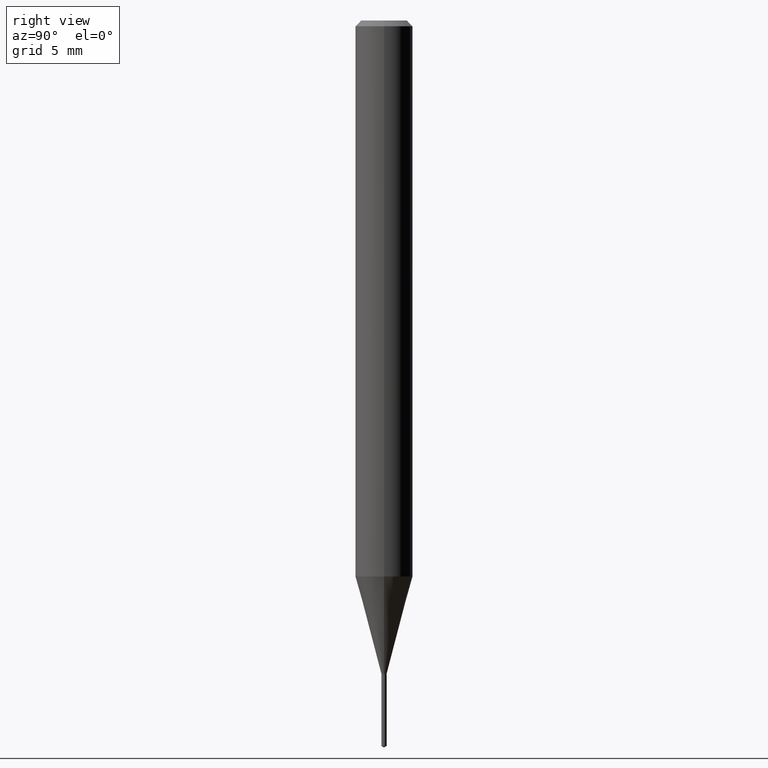
[diagram: clean part render]
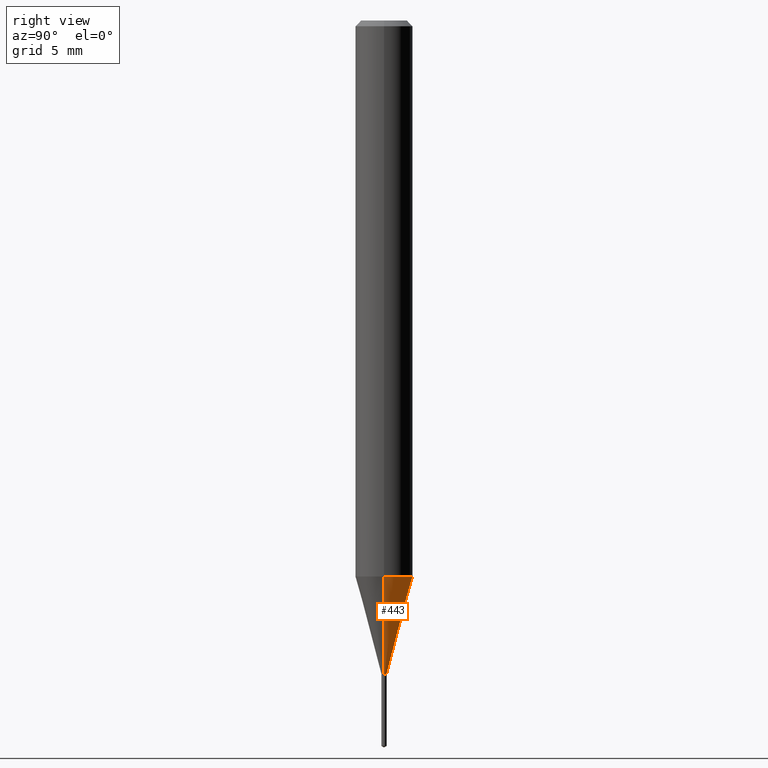
[diagram: same view with one face highlighted and labeled with its STEP entity id]
A machine part, right view. The second image highlights one B-rep face of the part: STEP entity #443.
In plain terms, the highlighted conical surface has half-angle 15 deg.
Its self-contained STEP definition (entity closure, byte-faithful):
#11 = DIRECTION ( 'NONE',  ( -2.445468806185136597E-29, 3.491481338843145583E-15, 1.000000000000000000 ) ) ;
#16 = DIRECTION ( 'NONE',  ( 1.000000000000000000, -6.982962677686350330E-15, 0.000000000000000000 ) ) ;
#19 = CIRCLE ( 'NONE', #147, 0.05905000000000013710 ) ;
#24 = DIRECTION ( 'NONE',  ( -0.2588190451025213501, 5.211531920934551042E-15, 0.9659258262890682012 ) ) ;
#54 = CARTESIAN_POINT ( 'NONE',  ( 3.288910997438389961E-29, -4.695693252610146470E-15, -1.344899999999999984 ) ) ;
#59 = CARTESIAN_POINT ( 'NONE',  ( 0.005300000000000000891, -4.732702954801883924E-15, -1.344899999999999984 ) ) ;
#62 = DIRECTION ( 'NONE',  ( 0.2588190451025213501, 1.565188264969621968E-15, 0.9659258262890682012 ) ) ;
#81 = VERTEX_POINT ( 'NONE', #261 ) ;
#84 = ORIENTED_EDGE ( 'NONE', *, *, #380, .F. ) ;
#91 = DIRECTION ( 'NONE',  ( -2.445468806185136597E-29, 3.491481338843145583E-15, 1.000000000000000000 ) ) ;
#94 = CARTESIAN_POINT ( 'NONE',  ( -0.05905000000000013710, -3.575734533068340951E-15, -1.144302269093172786 ) ) ;
#98 = LINE ( 'NONE', #429, #288 ) ;
#115 = VECTOR ( 'NONE', #24, 39.37007874015747433 ) ;
#147 = AXIS2_PLACEMENT_3D ( 'NONE', #477, #394, #278 ) ;
#160 = DIRECTION ( 'NONE',  ( 1.000000000000000000, -6.982962677686350330E-15, 0.000000000000000000 ) ) ;
#176 = LINE ( 'NONE', #360, #115 ) ;
#179 = AXIS2_PLACEMENT_3D ( 'NONE', #54, #11, #160 ) ;
#191 = VERTEX_POINT ( 'NONE', #59 ) ;
#210 = EDGE_LOOP ( 'NONE', ( #428, #354, #84, #408 ) ) ;
#261 = CARTESIAN_POINT ( 'NONE',  ( 0.05905000000000013710, -4.407653964652056153E-15, -1.144302269093172786 ) ) ;
#270 = CARTESIAN_POINT ( 'NONE',  ( 3.288910997438389961E-29, -4.695693252610146470E-15, -1.344899999999999984 ) ) ;
#278 = DIRECTION ( 'NONE',  ( 1.000000000000000000, -6.982962677686264344E-15, 0.000000000000000000 ) ) ;
#288 = VECTOR ( 'NONE', #62, 39.37007874015747433 ) ;
#300 = EDGE_CURVE ( 'NONE', #384, #413, #176, .T. ) ;
#317 = CARTESIAN_POINT ( 'NONE',  ( -0.005300000000000000891, -4.659954802351225412E-15, -1.344899999999999984 ) ) ;
#344 = FACE_OUTER_BOUND ( 'NONE', #210, .T. ) ;
#351 = EDGE_CURVE ( 'NONE', #191, #81, #98, .T. ) ;
#354 = ORIENTED_EDGE ( 'NONE', *, *, #300, .T. ) ;
#360 = CARTESIAN_POINT ( 'NONE',  ( -0.005300000000000000891, -4.658034487614861364E-15, -1.344899999999999984 ) ) ;
#380 = EDGE_CURVE ( 'NONE', #81, #413, #19, .T. ) ;
#384 = VERTEX_POINT ( 'NONE', #317 ) ;
#388 = CONICAL_SURFACE ( 'NONE', #179, 0.005300000000000000891, 0.2617993877991500740 ) ;
#394 = DIRECTION ( 'NONE',  ( -2.445468806185136597E-29, 3.491481338843145583E-15, 1.000000000000000000 ) ) ;
#408 = ORIENTED_EDGE ( 'NONE', *, *, #351, .F. ) ;
#413 = VERTEX_POINT ( 'NONE', #94 ) ;
#428 = ORIENTED_EDGE ( 'NONE', *, *, #446, .T. ) ;
#429 = CARTESIAN_POINT ( 'NONE',  ( 0.005300000000000000891, -4.732702954801883924E-15, -1.344899999999999984 ) ) ;
#443 = ADVANCED_FACE ( 'NONE', ( #344 ), #388, .T. ) ;
#446 = EDGE_CURVE ( 'NONE', #191, #384, #481, .T. ) ;
#469 = AXIS2_PLACEMENT_3D ( 'NONE', #270, #91, #16 ) ;
#477 = CARTESIAN_POINT ( 'NONE',  ( 2.798355503914224078E-29, -3.995310018534680444E-15, -1.144302269093172786 ) ) ;
#481 = CIRCLE ( 'NONE', #469, 0.005300000000000000891 ) ;